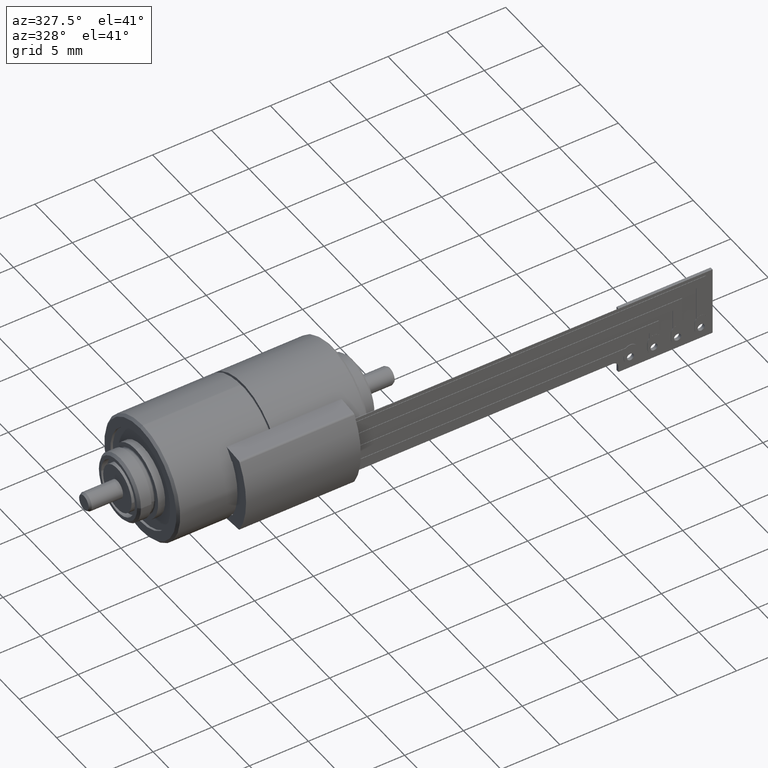
[diagram: clean part render]
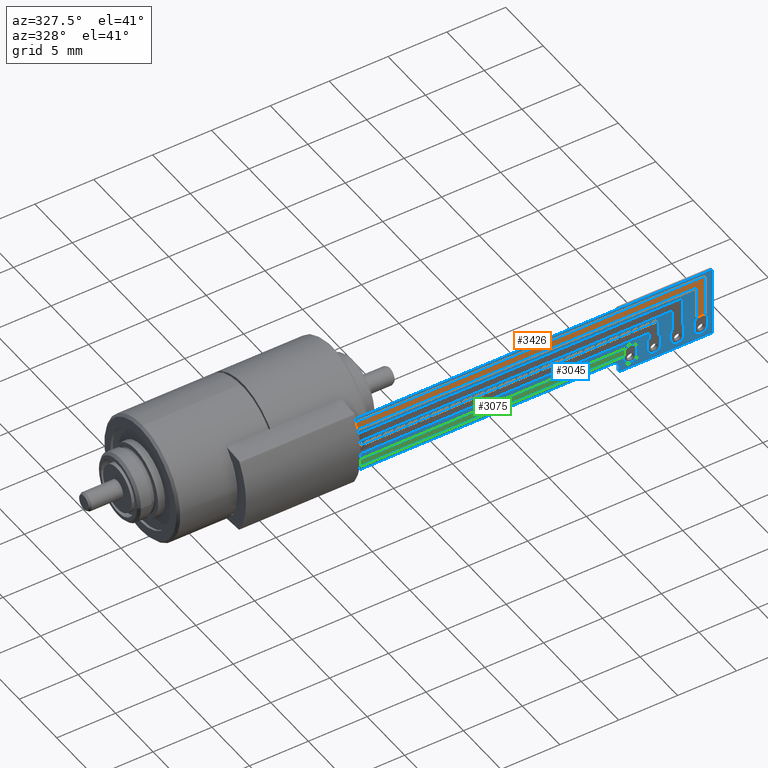
[diagram: same view with three faces highlighted in distinct colors, each labeled with its STEP entity id]
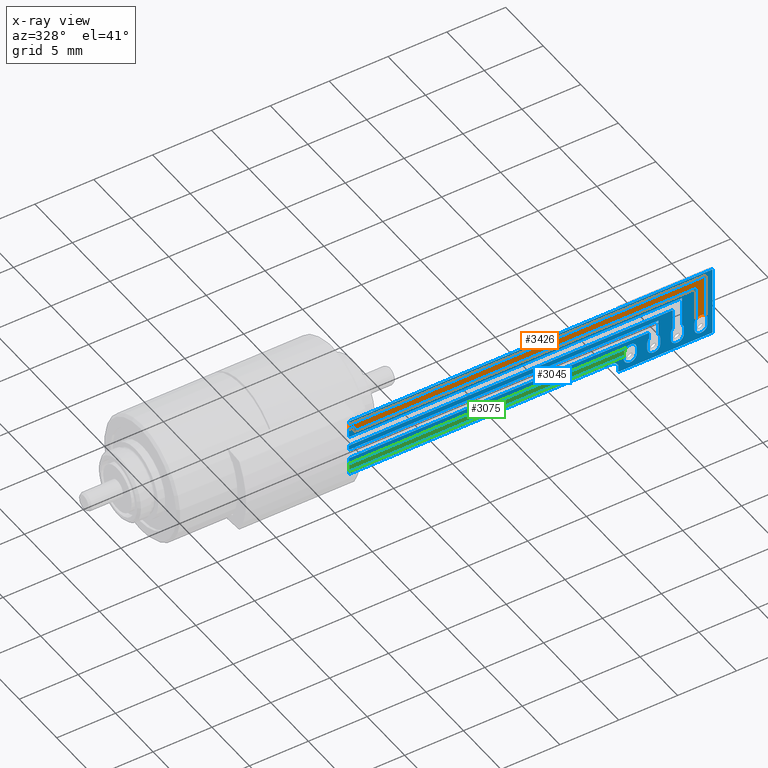
[diagram: x-ray of the same camera — body ghosted, the three highlighted faces saturated]
A machine part, auxiliary view with three faces highlighted in distinct colors.
The next image is the same camera in x-ray (body ghosted, the three faces saturated) — at least one of them is partly hidden behind the body in this view.
Their STEP definitions:

[orange] entity #3426 — the highlighted planar face has unit normal (0, -1, 0).
#1926=DIRECTION('',(0.E0,-1.E0,0.E0));
#1927=VECTOR('',#1926,4.E-1);
#1928=CARTESIAN_POINT('',(8.1E0,4.7E0,6.E-2));
#1929=LINE('',#1928,#1927);
#2359=DIRECTION('',(0.E0,-1.E0,0.E0));
#2360=VECTOR('',#2359,2.922508278236E0);
#2361=CARTESIAN_POINT('',(3.76E1,3.9E0,6.E-2));
#2362=LINE('',#2361,#2360);
#2363=DIRECTION('',(1.E0,0.E0,0.E0));
#2364=VECTOR('',#2363,2.91E1);
#2365=CARTESIAN_POINT('',(8.5E0,3.9E0,6.E-2));
#2366=LINE('',#2365,#2364);
#2371=DIRECTION('',(0.E0,-1.E0,0.E0));
#2372=VECTOR('',#2371,4.E-1);
#2373=CARTESIAN_POINT('',(8.5E0,4.3E0,6.E-2));
#2374=LINE('',#2373,#2372);
#2379=DIRECTION('',(1.E0,0.E0,0.E0));
#2380=VECTOR('',#2379,4.E-1);
#2381=CARTESIAN_POINT('',(8.1E0,4.3E0,6.E-2));
#2382=LINE('',#2381,#2380);
#2387=CARTESIAN_POINT('',(3.8E1,6.E-1,6.E-2));
#2388=DIRECTION('',(0.E0,0.E0,1.E0));
#2389=DIRECTION('',(7.272727272727E-1,6.863485850246E-1,0.E0));
#2390=AXIS2_PLACEMENT_3D('',#2387,#2388,#2389);
#2392=DIRECTION('',(-1.E0,0.E0,0.E0));
#2393=VECTOR('',#2392,3.03E1);
#2394=CARTESIAN_POINT('',(3.84E1,4.7E0,6.E-2));
#2395=LINE('',#2394,#2393);
#2396=DIRECTION('',(0.E0,1.E0,0.E0));
#2397=VECTOR('',#2396,3.722508278236E0);
#2398=CARTESIAN_POINT('',(3.84E1,9.774917217635E-1,6.E-2));
#2399=LINE('',#2398,#2397);
#2632=CARTESIAN_POINT('',(8.1E0,4.7E0,6.E-2));
#2633=VERTEX_POINT('',#2632);
#2634=CARTESIAN_POINT('',(8.1E0,4.3E0,6.E-2));
#2635=VERTEX_POINT('',#2634);
#2782=CARTESIAN_POINT('',(3.76E1,9.774917217635E-1,6.E-2));
#2783=VERTEX_POINT('',#2782);
#2784=CARTESIAN_POINT('',(3.84E1,9.774917217635E-1,6.E-2));
#2785=VERTEX_POINT('',#2784);
#2786=CARTESIAN_POINT('',(3.76E1,3.9E0,6.E-2));
#2787=VERTEX_POINT('',#2786);
#2788=CARTESIAN_POINT('',(8.5E0,3.9E0,6.E-2));
#2789=VERTEX_POINT('',#2788);
#2790=CARTESIAN_POINT('',(8.5E0,4.3E0,6.E-2));
#2791=VERTEX_POINT('',#2790);
#2792=CARTESIAN_POINT('',(3.84E1,4.7E0,6.E-2));
#2793=VERTEX_POINT('',#2792);
#3409=CARTESIAN_POINT('',(3.8E1,6.E-1,6.E-2));
#3410=DIRECTION('',(0.E0,0.E0,1.E0));
#3411=DIRECTION('',(1.E0,0.E0,0.E0));
#3412=AXIS2_PLACEMENT_3D('',#3409,#3410,#3411);
#3413=PLANE('',#3412);
#3414=ORIENTED_EDGE('',*,*,#2903,.F.);
#3416=ORIENTED_EDGE('',*,*,#3415,.F.);
#3418=ORIENTED_EDGE('',*,*,#3417,.F.);
#3419=ORIENTED_EDGE('',*,*,#3340,.T.);
#3420=ORIENTED_EDGE('',*,*,#3362,.F.);
#3421=ORIENTED_EDGE('',*,*,#3376,.F.);
#3422=ORIENTED_EDGE('',*,*,#3390,.F.);
#3423=ORIENTED_EDGE('',*,*,#3402,.F.);
#3424=EDGE_LOOP('',(#3414,#3416,#3418,#3419,#3420,#3421,#3422,#3423));
#3425=FACE_OUTER_BOUND('',#3424,.F.);
#3426=ADVANCED_FACE('',(#3425),#3413,.T.);
#2391=CIRCLE('',#2390,5.5E-1);
#2903=EDGE_CURVE('',#2633,#2635,#1929,.T.);
#3340=EDGE_CURVE('',#2785,#2783,#2391,.T.);
#3362=EDGE_CURVE('',#2787,#2783,#2362,.T.);
#3376=EDGE_CURVE('',#2789,#2787,#2366,.T.);
#3390=EDGE_CURVE('',#2791,#2789,#2374,.T.);
#3402=EDGE_CURVE('',#2635,#2791,#2382,.T.);
#3415=EDGE_CURVE('',#2793,#2633,#2395,.T.);
#3417=EDGE_CURVE('',#2785,#2793,#2399,.T.);

[blue] entity #3045 — the highlighted planar face has unit normal (0, -1, 0).
#1906=DIRECTION('',(-1.E0,0.E0,0.E0));
#1907=VECTOR('',#1906,3.09E1);
#1908=CARTESIAN_POINT('',(3.9E1,5.E0,2.5E-2));
#1909=LINE('',#1908,#1907);
#1918=DIRECTION('',(0.E0,-1.E0,0.E0));
#1919=VECTOR('',#1918,3.E-1);
#1920=CARTESIAN_POINT('',(8.1E0,5.E0,2.5E-2));
#1921=LINE('',#1920,#1919);
#1934=DIRECTION('',(0.E0,-1.E0,0.E0));
#1935=VECTOR('',#1934,8.E-1);
#1936=CARTESIAN_POINT('',(8.1E0,4.3E0,2.5E-2));
#1937=LINE('',#1936,#1935);
#1950=DIRECTION('',(0.E0,-1.E0,0.E0));
#1951=VECTOR('',#1950,4.E-1);
#1952=CARTESIAN_POINT('',(8.1E0,2.7E0,2.5E-2));
#1953=LINE('',#1952,#1951);
#1966=DIRECTION('',(0.E0,-1.E0,0.E0));
#1967=VECTOR('',#1966,4.999999999999E-1);
#1968=CARTESIAN_POINT('',(8.1E0,1.5E0,2.5E-2));
#1969=LINE('',#1968,#1967);
#1982=DIRECTION('',(0.E0,-1.E0,0.E0));
#1983=VECTOR('',#1982,3.E-1);
#1984=CARTESIAN_POINT('',(8.1E0,3.E-1,2.5E-2));
#1985=LINE('',#1984,#1983);
#1986=DIRECTION('',(1.E0,0.E0,0.E0));
#1987=VECTOR('',#1986,2.24E1);
#1988=CARTESIAN_POINT('',(8.1E0,0.E0,2.5E-2));
#1989=LINE('',#1988,#1987);
#1994=DIRECTION('',(1.E0,0.E0,0.E0));
#1995=VECTOR('',#1994,2.335E1);
#1996=CARTESIAN_POINT('',(8.1E0,3.E-1,2.5E-2));
#1997=LINE('',#1996,#1995);
#1998=DIRECTION('',(0.E0,-1.E0,0.E0));
#1999=VECTOR('',#1998,3.E-1);
#2000=CARTESIAN_POINT('',(3.145E1,3.E-1,2.5E-2));
#2001=LINE('',#2000,#1999);
#2002=CARTESIAN_POINT('',(3.2E1,-3.946495907847E-14,2.5E-2));
#2003=DIRECTION('',(0.E0,0.E0,1.E0));
#2004=DIRECTION('',(-1.E0,0.E0,0.E0));
#2005=AXIS2_PLACEMENT_3D('',#2002,#2003,#2004);
#2007=DIRECTION('',(0.E0,1.E0,0.E0));
#2008=VECTOR('',#2007,6.E-1);
#2009=CARTESIAN_POINT('',(3.255E1,-3.944482018512E-14,2.5E-2));
#2010=LINE('',#2009,#2008);
#2011=CARTESIAN_POINT('',(3.2E1,6.E-1,2.5E-2));
#2012=DIRECTION('',(0.E0,0.E0,1.E0));
#2013=DIRECTION('',(1.E0,0.E0,0.E0));
#2014=AXIS2_PLACEMENT_3D('',#2011,#2012,#2013);
#2016=DIRECTION('',(-1.E0,-3.140576641944E-14,0.E0));
#2017=VECTOR('',#2016,2.352250827824E1);
#2018=CARTESIAN_POINT('',(3.162250827824E1,1.000000000001E0,2.5E-2));
#2019=LINE('',#2018,#2017);
#2020=DIRECTION('',(1.E0,0.E0,0.E0));
#2021=VECTOR('',#2020,2.55E1);
#2022=CARTESIAN_POINT('',(8.1E0,1.5E0,2.5E-2));
#2023=LINE('',#2022,#2021);
#2024=DIRECTION('',(-1.359868858266E-14,-1.E0,0.E0));
#2025=VECTOR('',#2024,5.225082782365E-1);
#2026=CARTESIAN_POINT('',(3.36E1,1.5E0,2.5E-2));
#2027=LINE('',#2026,#2025);
#2028=CARTESIAN_POINT('',(3.4E1,6.E-1,2.5E-2));
#2029=DIRECTION('',(0.E0,0.E0,1.E0));
#2030=DIRECTION('',(-7.272727272727E-1,6.863485850246E-1,0.E0));
#2031=AXIS2_PLACEMENT_3D('',#2028,#2029,#2030);
#2033=DIRECTION('',(0.E0,-1.E0,0.E0));
#2034=VECTOR('',#2033,6.E-1);
#2035=CARTESIAN_POINT('',(3.345E1,6.E-1,2.5E-2));
#2036=LINE('',#2035,#2034);
#2037=CARTESIAN_POINT('',(3.4E1,-2.515349040166E-14,2.5E-2));
#2038=DIRECTION('',(0.E0,0.E0,1.E0));
#2039=DIRECTION('',(-1.E0,8.973882243362E-14,0.E0));
#2040=AXIS2_PLACEMENT_3D('',#2037,#2038,#2039);
#2042=DIRECTION('',(0.E0,1.E0,0.E0));
#2043=VECTOR('',#2042,6.000000000001E-1);
#2044=CARTESIAN_POINT('',(3.455E1,-5.533558111446E-14,2.5E-2));
#2045=LINE('',#2044,#2043);
#2046=CARTESIAN_POINT('',(3.4E1,6.E-1,2.5E-2));
#2047=DIRECTION('',(0.E0,0.E0,1.E0));
#2048=DIRECTION('',(1.E0,0.E0,0.E0));
#2049=AXIS2_PLACEMENT_3D('',#2046,#2047,#2048);
#2051=DIRECTION('',(0.E0,1.E0,0.E0));
#2052=VECTOR('',#2051,1.322508278236E0);
#2053=CARTESIAN_POINT('',(3.44E1,9.774917217635E-1,2.5E-2));
#2054=LINE('',#2053,#2052);
#2055=DIRECTION('',(-1.E0,0.E0,0.E0));
#2056=VECTOR('',#2055,2.63E1);
#2057=CARTESIAN_POINT('',(3.44E1,2.3E0,2.5E-2));
#2058=LINE('',#2057,#2056);
#2059=DIRECTION('',(1.E0,0.E0,0.E0));
#2060=VECTOR('',#2059,2.75E1);
#2061=CARTESIAN_POINT('',(8.1E0,2.7E0,2.5E-2));
#2062=LINE('',#2061,#2060);
#2063=DIRECTION('',(0.E0,-1.E0,0.E0));
#2064=VECTOR('',#2063,1.722508278236E0);
#2065=CARTESIAN_POINT('',(3.56E1,2.7E0,2.5E-2));
#2066=LINE('',#2065,#2064);
#2067=CARTESIAN_POINT('',(3.6E1,6.E-1,2.5E-2));
#2068=DIRECTION('',(0.E0,0.E0,1.E0));
#2069=DIRECTION('',(-7.272727272727E-1,6.863485850246E-1,0.E0));
#2070=AXIS2_PLACEMENT_3D('',#2067,#2068,#2069);
#2072=DIRECTION('',(0.E0,-1.E0,0.E0));
#2073=VECTOR('',#2072,6.E-1);
#2074=CARTESIAN_POINT('',(3.545E1,6.E-1,2.5E-2));
#2075=LINE('',#2074,#2073);
#2076=CARTESIAN_POINT('',(3.6E1,-1.127570259385E-14,2.5E-2));
#2077=DIRECTION('',(0.E0,0.E0,1.E0));
#2078=DIRECTION('',(-1.E0,8.973882243362E-14,0.E0));
#2079=AXIS2_PLACEMENT_3D('',#2076,#2077,#2078);
#2081=DIRECTION('',(0.E0,1.E0,0.E0));
#2082=VECTOR('',#2081,6.E-1);
#2083=CARTESIAN_POINT('',(3.655E1,-4.169464088523E-14,2.5E-2));
#2084=LINE('',#2083,#2082);
#2085=CARTESIAN_POINT('',(3.6E1,6.E-1,2.5E-2));
#2086=DIRECTION('',(0.E0,0.E0,1.E0));
#2087=DIRECTION('',(1.E0,0.E0,0.E0));
#2088=AXIS2_PLACEMENT_3D('',#2085,#2086,#2087);
#2090=DIRECTION('',(0.E0,1.E0,0.E0));
#2091=VECTOR('',#2090,2.522508278236E0);
#2092=CARTESIAN_POINT('',(3.64E1,9.774917217635E-1,2.5E-2));
#2093=LINE('',#2092,#2091);
#2094=DIRECTION('',(-1.E0,0.E0,0.E0));
#2095=VECTOR('',#2094,2.83E1);
#2096=CARTESIAN_POINT('',(3.64E1,3.5E0,2.5E-2));
#2097=LINE('',#2096,#2095);
#2098=DIRECTION('',(1.E0,0.E0,0.E0));
#2099=VECTOR('',#2098,4.E-1);
#2100=CARTESIAN_POINT('',(8.1E0,4.3E0,2.5E-2));
#2101=LINE('',#2100,#2099);
#2102=DIRECTION('',(0.E0,-1.E0,0.E0));
#2103=VECTOR('',#2102,4.E-1);
#2104=CARTESIAN_POINT('',(8.5E0,4.3E0,2.5E-2));
#2105=LINE('',#2104,#2103);
#2106=DIRECTION('',(1.E0,0.E0,0.E0));
#2107=VECTOR('',#2106,2.91E1);
#2108=CARTESIAN_POINT('',(8.5E0,3.9E0,2.5E-2));
#2109=LINE('',#2108,#2107);
#2110=DIRECTION('',(0.E0,-1.E0,0.E0));
#2111=VECTOR('',#2110,2.922508278236E0);
#2112=CARTESIAN_POINT('',(3.76E1,3.9E0,2.5E-2));
#2113=LINE('',#2112,#2111);
#2114=CARTESIAN_POINT('',(3.8E1,6.E-1,2.5E-2));
#2115=DIRECTION('',(0.E0,0.E0,1.E0));
#2116=DIRECTION('',(-7.272727272727E-1,6.863485850246E-1,0.E0));
#2117=AXIS2_PLACEMENT_3D('',#2114,#2115,#2116);
#2119=DIRECTION('',(0.E0,-1.E0,0.E0));
#2120=VECTOR('',#2119,6.E-1);
#2121=CARTESIAN_POINT('',(3.745E1,6.E-1,2.5E-2));
#2122=LINE('',#2121,#2120);
#2123=CARTESIAN_POINT('',(3.8E1,0.E0,2.5E-2));
#2124=DIRECTION('',(0.E0,0.E0,1.E0));
#2125=DIRECTION('',(-1.E0,8.962527689701E-14,0.E0));
#2126=AXIS2_PLACEMENT_3D('',#2123,#2124,#2125);
#2128=DIRECTION('',(0.E0,1.E0,0.E0));
#2129=VECTOR('',#2128,6.E-1);
#2130=CARTESIAN_POINT('',(3.855E1,-2.193405882569E-14,2.5E-2));
#2131=LINE('',#2130,#2129);
#2132=CARTESIAN_POINT('',(3.8E1,6.E-1,2.5E-2));
#2133=DIRECTION('',(0.E0,0.E0,1.E0));
#2134=DIRECTION('',(1.E0,0.E0,0.E0));
#2135=AXIS2_PLACEMENT_3D('',#2132,#2133,#2134);
#2137=DIRECTION('',(0.E0,1.E0,0.E0));
#2138=VECTOR('',#2137,3.722508278236E0);
#2139=CARTESIAN_POINT('',(3.84E1,9.774917217635E-1,2.5E-2));
#2140=LINE('',#2139,#2138);
#2141=DIRECTION('',(-1.E0,0.E0,0.E0));
#2142=VECTOR('',#2141,3.03E1);
#2143=CARTESIAN_POINT('',(3.84E1,4.7E0,2.5E-2));
#2144=LINE('',#2143,#2142);
#2145=CARTESIAN_POINT('',(3.05E1,-5.E-1,2.5E-2));
#2146=DIRECTION('',(0.E0,0.E0,1.E0));
#2147=DIRECTION('',(1.E0,0.E0,0.E0));
#2148=AXIS2_PLACEMENT_3D('',#2145,#2146,#2147);
#2267=DIRECTION('',(0.E0,-1.E0,0.E0));
#2268=VECTOR('',#2267,5.E-1);
#2269=CARTESIAN_POINT('',(3.1E1,-5.E-1,2.5E-2));
#2270=LINE('',#2269,#2268);
#2291=DIRECTION('',(1.E0,0.E0,0.E0));
#2292=VECTOR('',#2291,8.E0);
#2293=CARTESIAN_POINT('',(3.1E1,-1.E0,2.5E-2));
#2294=LINE('',#2293,#2292);
#2303=DIRECTION('',(0.E0,1.E0,0.E0));
#2304=VECTOR('',#2303,6.E0);
#2305=CARTESIAN_POINT('',(3.9E1,-1.E0,2.5E-2));
#2306=LINE('',#2305,#2304);
#2617=CARTESIAN_POINT('',(8.1E0,5.E0,2.5E-2));
#2619=VERTEX_POINT('',#2617);
#2624=CARTESIAN_POINT('',(3.9E1,5.E0,2.5E-2));
#2625=VERTEX_POINT('',#2624);
#2626=CARTESIAN_POINT('',(8.1E0,0.E0,2.5E-2));
#2628=VERTEX_POINT('',#2626);
#2630=CARTESIAN_POINT('',(8.1E0,4.7E0,2.5E-2));
#2631=VERTEX_POINT('',#2630);
#2636=CARTESIAN_POINT('',(8.1E0,4.3E0,2.5E-2));
#2637=VERTEX_POINT('',#2636);
#2638=CARTESIAN_POINT('',(8.1E0,3.5E0,2.5E-2));
#2639=VERTEX_POINT('',#2638);
#2644=CARTESIAN_POINT('',(8.1E0,2.7E0,2.5E-2));
#2645=VERTEX_POINT('',#2644);
#2646=CARTESIAN_POINT('',(8.1E0,2.3E0,2.5E-2));
#2647=VERTEX_POINT('',#2646);
#2652=CARTESIAN_POINT('',(8.1E0,1.5E0,2.5E-2));
#2653=VERTEX_POINT('',#2652);
#2654=CARTESIAN_POINT('',(8.1E0,1.E0,2.5E-2));
#2655=VERTEX_POINT('',#2654);
#2660=CARTESIAN_POINT('',(8.1E0,3.E-1,2.5E-2));
#2661=VERTEX_POINT('',#2660);
#2662=CARTESIAN_POINT('',(3.05E1,0.E0,2.5E-2));
#2663=VERTEX_POINT('',#2662);
#2664=CARTESIAN_POINT('',(3.145E1,3.E-1,2.5E-2));
#2665=VERTEX_POINT('',#2664);
#2666=CARTESIAN_POINT('',(3.145E1,-3.952393967666E-14,2.5E-2));
#2667=VERTEX_POINT('',#2666);
#2668=CARTESIAN_POINT('',(3.255E1,-3.952884520547E-14,2.5E-2));
#2669=VERTEX_POINT('',#2668);
#2670=CARTESIAN_POINT('',(3.255E1,6.E-1,2.5E-2));
#2671=VERTEX_POINT('',#2670);
#2672=CARTESIAN_POINT('',(3.162250827824E1,1.E0,2.5E-2));
#2673=VERTEX_POINT('',#2672);
#2674=CARTESIAN_POINT('',(3.36E1,1.5E0,2.5E-2));
#2675=VERTEX_POINT('',#2674);
#2676=CARTESIAN_POINT('',(3.36E1,9.774917217635E-1,2.5E-2));
#2677=VERTEX_POINT('',#2676);
#2678=CARTESIAN_POINT('',(3.345E1,6.E-1,2.5E-2));
#2679=VERTEX_POINT('',#2678);
#2680=CARTESIAN_POINT('',(3.345E1,0.E0,2.5E-2));
#2681=VERTEX_POINT('',#2680);
#2682=CARTESIAN_POINT('',(3.455E1,-7.457719831410E-14,2.5E-2));
#2683=VERTEX_POINT('',#2682);
#2684=CARTESIAN_POINT('',(3.455E1,6.E-1,2.5E-2));
#2685=VERTEX_POINT('',#2684);
#2686=CARTESIAN_POINT('',(3.44E1,9.774917217635E-1,2.5E-2));
#2687=VERTEX_POINT('',#2686);
#2688=CARTESIAN_POINT('',(3.44E1,2.3E0,2.5E-2));
#2689=VERTEX_POINT('',#2688);
#2690=CARTESIAN_POINT('',(3.56E1,2.7E0,2.5E-2));
#2691=VERTEX_POINT('',#2690);
#2692=CARTESIAN_POINT('',(3.56E1,9.774917217635E-1,2.5E-2));
#2693=VERTEX_POINT('',#2692);
#2694=CARTESIAN_POINT('',(3.545E1,6.E-1,2.5E-2));
#2695=VERTEX_POINT('',#2694);
#2696=CARTESIAN_POINT('',(3.545E1,0.E0,2.5E-2));
#2697=VERTEX_POINT('',#2696);
#2698=CARTESIAN_POINT('',(3.655E1,-6.069941050630E-14,2.5E-2));
#2699=VERTEX_POINT('',#2698);
#2700=CARTESIAN_POINT('',(3.655E1,6.E-1,2.5E-2));
#2701=VERTEX_POINT('',#2700);
#2702=CARTESIAN_POINT('',(3.64E1,9.774917217635E-1,2.5E-2));
#2703=VERTEX_POINT('',#2702);
#2704=CARTESIAN_POINT('',(3.64E1,3.5E0,2.5E-2));
#2705=VERTEX_POINT('',#2704);
#2706=CARTESIAN_POINT('',(8.5E0,4.3E0,2.5E-2));
#2707=VERTEX_POINT('',#2706);
#2708=CARTESIAN_POINT('',(8.5E0,3.9E0,2.5E-2));
#2709=VERTEX_POINT('',#2708);
#2710=CARTESIAN_POINT('',(3.76E1,3.9E0,2.5E-2));
#2711=VERTEX_POINT('',#2710);
#2712=CARTESIAN_POINT('',(3.76E1,9.774917217635E-1,2.5E-2));
#2713=VERTEX_POINT('',#2712);
#2714=CARTESIAN_POINT('',(3.745E1,6.E-1,2.5E-2));
#2715=VERTEX_POINT('',#2714);
#2716=CARTESIAN_POINT('',(3.745E1,1.998401444325E-14,2.5E-2));
#2717=VERTEX_POINT('',#2716);
#2718=CARTESIAN_POINT('',(3.855E1,-4.936125786731E-14,2.5E-2));
#2719=VERTEX_POINT('',#2718);
#2720=CARTESIAN_POINT('',(3.855E1,6.E-1,2.5E-2));
#2721=VERTEX_POINT('',#2720);
#2722=CARTESIAN_POINT('',(3.84E1,9.774917217635E-1,2.5E-2));
#2723=VERTEX_POINT('',#2722);
#2724=CARTESIAN_POINT('',(3.84E1,4.7E0,2.5E-2));
#2725=VERTEX_POINT('',#2724);
#2726=CARTESIAN_POINT('',(3.9E1,-1.E0,2.5E-2));
#2727=VERTEX_POINT('',#2726);
#2728=CARTESIAN_POINT('',(3.1E1,-1.E0,2.5E-2));
#2729=VERTEX_POINT('',#2728);
#2730=CARTESIAN_POINT('',(3.1E1,-5.E-1,2.5E-2));
#2731=VERTEX_POINT('',#2730);
#2953=CARTESIAN_POINT('',(3.05E1,-5.E-1,2.5E-2));
#2954=DIRECTION('',(0.E0,0.E0,1.E0));
#2955=DIRECTION('',(1.E0,0.E0,0.E0));
#2956=AXIS2_PLACEMENT_3D('',#2953,#2954,#2955);
#2957=PLANE('',#2956);
#2958=ORIENTED_EDGE('',*,*,#2931,.F.);
#2960=ORIENTED_EDGE('',*,*,#2959,.T.);
#2962=ORIENTED_EDGE('',*,*,#2961,.T.);
#2964=ORIENTED_EDGE('',*,*,#2963,.T.);
#2966=ORIENTED_EDGE('',*,*,#2965,.T.);
#2968=ORIENTED_EDGE('',*,*,#2967,.T.);
#2970=ORIENTED_EDGE('',*,*,#2969,.T.);
#2971=ORIENTED_EDGE('',*,*,#2923,.F.);
#2973=ORIENTED_EDGE('',*,*,#2972,.T.);
#2975=ORIENTED_EDGE('',*,*,#2974,.T.);
#2977=ORIENTED_EDGE('',*,*,#2976,.T.);
#2979=ORIENTED_EDGE('',*,*,#2978,.T.);
#2981=ORIENTED_EDGE('',*,*,#2980,.T.);
#2983=ORIENTED_EDGE('',*,*,#2982,.T.);
#2985=ORIENTED_EDGE('',*,*,#2984,.T.);
#2987=ORIENTED_EDGE('',*,*,#2986,.T.);
#2989=ORIENTED_EDGE('',*,*,#2988,.T.);
#2990=ORIENTED_EDGE('',*,*,#2915,.F.);
#2992=ORIENTED_EDGE('',*,*,#2991,.T.);
#2994=ORIENTED_EDGE('',*,*,#2993,.T.);
#2996=ORIENTED_EDGE('',*,*,#2995,.T.);
#2998=ORIENTED_EDGE('',*,*,#2997,.T.);
#3000=ORIENTED_EDGE('',*,*,#2999,.T.);
#3002=ORIENTED_EDGE('',*,*,#3001,.T.);
#3004=ORIENTED_EDGE('',*,*,#3003,.T.);
#3006=ORIENTED_EDGE('',*,*,#3005,.T.);
#3008=ORIENTED_EDGE('',*,*,#3007,.T.);
#3009=ORIENTED_EDGE('',*,*,#2907,.F.);
#3011=ORIENTED_EDGE('',*,*,#3010,.T.);
#3013=ORIENTED_EDGE('',*,*,#3012,.T.);
#3015=ORIENTED_EDGE('',*,*,#3014,.T.);
#3017=ORIENTED_EDGE('',*,*,#3016,.T.);
#3019=ORIENTED_EDGE('',*,*,#3018,.T.);
#3021=ORIENTED_EDGE('',*,*,#3020,.T.);
#3023=ORIENTED_EDGE('',*,*,#3022,.T.);
#3025=ORIENTED_EDGE('',*,*,#3024,.T.);
#3027=ORIENTED_EDGE('',*,*,#3026,.T.);
#3029=ORIENTED_EDGE('',*,*,#3028,.T.);
#3031=ORIENTED_EDGE('',*,*,#3030,.T.);
#3032=ORIENTED_EDGE('',*,*,#2899,.F.);
#3033=ORIENTED_EDGE('',*,*,#2884,.F.);
#3035=ORIENTED_EDGE('',*,*,#3034,.F.);
#3037=ORIENTED_EDGE('',*,*,#3036,.F.);
#3039=ORIENTED_EDGE('',*,*,#3038,.F.);
#3041=ORIENTED_EDGE('',*,*,#3040,.T.);
#3042=ORIENTED_EDGE('',*,*,#2942,.F.);
#3043=EDGE_LOOP('',(#2958,#2960,#2962,#2964,#2966,#2968,#2970,#2971,#2973,#2975,
#2977,#2979,#2981,#2983,#2985,#2987,#2989,#2990,#2992,#2994,#2996,#2998,#3000,
#3002,#3004,#3006,#3008,#3009,#3011,#3013,#3015,#3017,#3019,#3021,#3023,#3025,
#3027,#3029,#3031,#3032,#3033,#3035,#3037,#3039,#3041,#3042));
#3044=FACE_OUTER_BOUND('',#3043,.F.);
#3045=ADVANCED_FACE('',(#3044),#2957,.T.);
#2006=CIRCLE('',#2005,5.5E-1);
#2015=CIRCLE('',#2014,5.5E-1);
#2032=CIRCLE('',#2031,5.5E-1);
#2041=CIRCLE('',#2040,5.5E-1);
#2050=CIRCLE('',#2049,5.5E-1);
#2071=CIRCLE('',#2070,5.5E-1);
#2080=CIRCLE('',#2079,5.5E-1);
#2089=CIRCLE('',#2088,5.5E-1);
#2118=CIRCLE('',#2117,5.5E-1);
#2127=CIRCLE('',#2126,5.5E-1);
#2136=CIRCLE('',#2135,5.5E-1);
#2149=CIRCLE('',#2148,5.E-1);
#2884=EDGE_CURVE('',#2625,#2619,#1909,.T.);
#2899=EDGE_CURVE('',#2619,#2631,#1921,.T.);
#2907=EDGE_CURVE('',#2637,#2639,#1937,.T.);
#2915=EDGE_CURVE('',#2645,#2647,#1953,.T.);
#2923=EDGE_CURVE('',#2653,#2655,#1969,.T.);
#2931=EDGE_CURVE('',#2661,#2628,#1985,.T.);
#2942=EDGE_CURVE('',#2628,#2663,#1989,.T.);
#2959=EDGE_CURVE('',#2661,#2665,#1997,.T.);
#2961=EDGE_CURVE('',#2665,#2667,#2001,.T.);
#2963=EDGE_CURVE('',#2667,#2669,#2006,.T.);
#2965=EDGE_CURVE('',#2669,#2671,#2010,.T.);
#2967=EDGE_CURVE('',#2671,#2673,#2015,.T.);
#2969=EDGE_CURVE('',#2673,#2655,#2019,.T.);
#2972=EDGE_CURVE('',#2653,#2675,#2023,.T.);
#2974=EDGE_CURVE('',#2675,#2677,#2027,.T.);
#2976=EDGE_CURVE('',#2677,#2679,#2032,.T.);
#2978=EDGE_CURVE('',#2679,#2681,#2036,.T.);
#2980=EDGE_CURVE('',#2681,#2683,#2041,.T.);
#2982=EDGE_CURVE('',#2683,#2685,#2045,.T.);
#2984=EDGE_CURVE('',#2685,#2687,#2050,.T.);
#2986=EDGE_CURVE('',#2687,#2689,#2054,.T.);
#2988=EDGE_CURVE('',#2689,#2647,#2058,.T.);
#2991=EDGE_CURVE('',#2645,#2691,#2062,.T.);
#2993=EDGE_CURVE('',#2691,#2693,#2066,.T.);
#2995=EDGE_CURVE('',#2693,#2695,#2071,.T.);
#2997=EDGE_CURVE('',#2695,#2697,#2075,.T.);
#2999=EDGE_CURVE('',#2697,#2699,#2080,.T.);
#3001=EDGE_CURVE('',#2699,#2701,#2084,.T.);
#3003=EDGE_CURVE('',#2701,#2703,#2089,.T.);
#3005=EDGE_CURVE('',#2703,#2705,#2093,.T.);
#3007=EDGE_CURVE('',#2705,#2639,#2097,.T.);
#3010=EDGE_CURVE('',#2637,#2707,#2101,.T.);
#3012=EDGE_CURVE('',#2707,#2709,#2105,.T.);
#3014=EDGE_CURVE('',#2709,#2711,#2109,.T.);
#3016=EDGE_CURVE('',#2711,#2713,#2113,.T.);
#3018=EDGE_CURVE('',#2713,#2715,#2118,.T.);
#3020=EDGE_CURVE('',#2715,#2717,#2122,.T.);
#3022=EDGE_CURVE('',#2717,#2719,#2127,.T.);
#3024=EDGE_CURVE('',#2719,#2721,#2131,.T.);
#3026=EDGE_CURVE('',#2721,#2723,#2136,.T.);
#3028=EDGE_CURVE('',#2723,#2725,#2140,.T.);
#3030=EDGE_CURVE('',#2725,#2631,#2144,.T.);
#3034=EDGE_CURVE('',#2727,#2625,#2306,.T.);
#3036=EDGE_CURVE('',#2729,#2727,#2294,.T.);
#3038=EDGE_CURVE('',#2731,#2729,#2270,.T.);
#3040=EDGE_CURVE('',#2731,#2663,#2149,.T.);

[green] entity #3075 — the highlighted planar face has unit normal (0, -1, 0).
#1974=DIRECTION('',(0.E0,-1.E0,0.E0));
#1975=VECTOR('',#1974,7.000000000001E-1);
#1976=CARTESIAN_POINT('',(8.1E0,1.E0,6.E-2));
#1977=LINE('',#1976,#1975);
#2150=DIRECTION('',(1.E0,0.E0,0.E0));
#2151=VECTOR('',#2150,2.335E1);
#2152=CARTESIAN_POINT('',(8.1E0,3.E-1,6.E-2));
#2153=LINE('',#2152,#2151);
#2158=CARTESIAN_POINT('',(3.2E1,6.E-1,6.E-2));
#2159=DIRECTION('',(0.E0,0.E0,1.E0));
#2160=DIRECTION('',(-6.863485850238E-1,7.272727272735E-1,0.E0));
#2161=AXIS2_PLACEMENT_3D('',#2158,#2159,#2160);
#2163=DIRECTION('',(-1.E0,-3.141520608472E-14,0.E0));
#2164=VECTOR('',#2163,2.352250827824E1);
#2165=CARTESIAN_POINT('',(3.162250827824E1,1.000000000001E0,6.E-2));
#2166=LINE('',#2165,#2164);
#2191=DIRECTION('',(0.E0,1.E0,0.E0));
#2192=VECTOR('',#2191,3.E-1);
#2193=CARTESIAN_POINT('',(3.145E1,3.E-1,6.E-2));
#2194=LINE('',#2193,#2192);
#2656=CARTESIAN_POINT('',(8.1E0,1.E0,6.E-2));
#2657=VERTEX_POINT('',#2656);
#2658=CARTESIAN_POINT('',(8.1E0,3.E-1,6.E-2));
#2659=VERTEX_POINT('',#2658);
#2732=CARTESIAN_POINT('',(3.145E1,3.E-1,6.E-2));
#2733=VERTEX_POINT('',#2732);
#2734=CARTESIAN_POINT('',(3.162250827824E1,1.000000000001E0,6.E-2));
#2735=VERTEX_POINT('',#2734);
#2736=CARTESIAN_POINT('',(3.145E1,6.E-1,6.E-2));
#2737=VERTEX_POINT('',#2736);
#3060=CARTESIAN_POINT('',(3.2E1,6.E-1,6.E-2));
#3061=DIRECTION('',(0.E0,0.E0,1.E0));
#3062=DIRECTION('',(1.E0,0.E0,0.E0));
#3063=AXIS2_PLACEMENT_3D('',#3060,#3061,#3062);
#3064=PLANE('',#3063);
#3065=ORIENTED_EDGE('',*,*,#2927,.F.);
#3067=ORIENTED_EDGE('',*,*,#3066,.F.);
#3069=ORIENTED_EDGE('',*,*,#3068,.T.);
#3071=ORIENTED_EDGE('',*,*,#3070,.F.);
#3072=ORIENTED_EDGE('',*,*,#3052,.F.);
#3073=EDGE_LOOP('',(#3065,#3067,#3069,#3071,#3072));
#3074=FACE_OUTER_BOUND('',#3073,.F.);
#3075=ADVANCED_FACE('',(#3074),#3064,.T.);
#2162=CIRCLE('',#2161,5.5E-1);
#2927=EDGE_CURVE('',#2657,#2659,#1977,.T.);
#3052=EDGE_CURVE('',#2659,#2733,#2153,.T.);
#3066=EDGE_CURVE('',#2735,#2657,#2166,.T.);
#3068=EDGE_CURVE('',#2735,#2737,#2162,.T.);
#3070=EDGE_CURVE('',#2733,#2737,#2194,.T.);